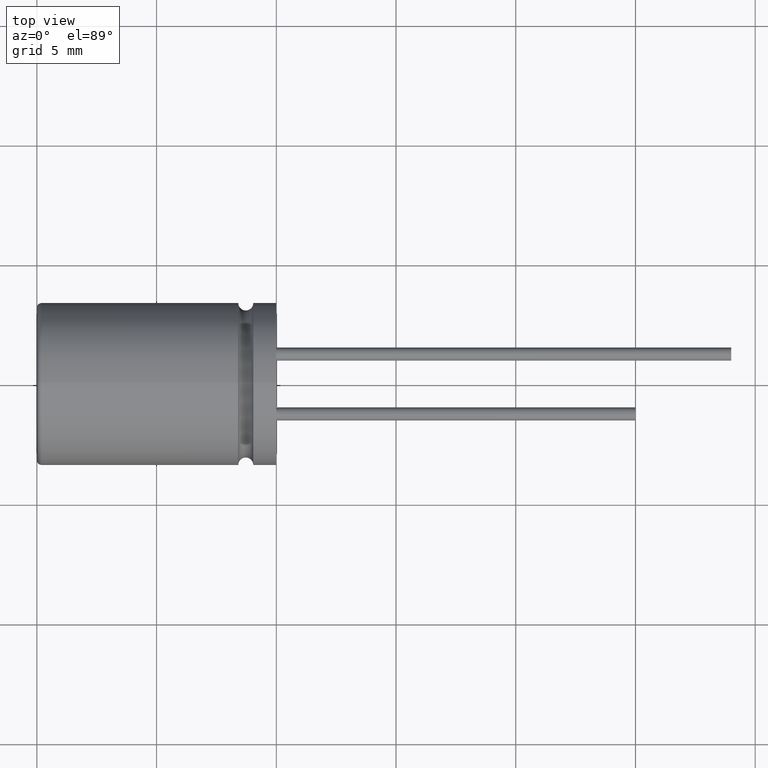
[diagram: clean part render]
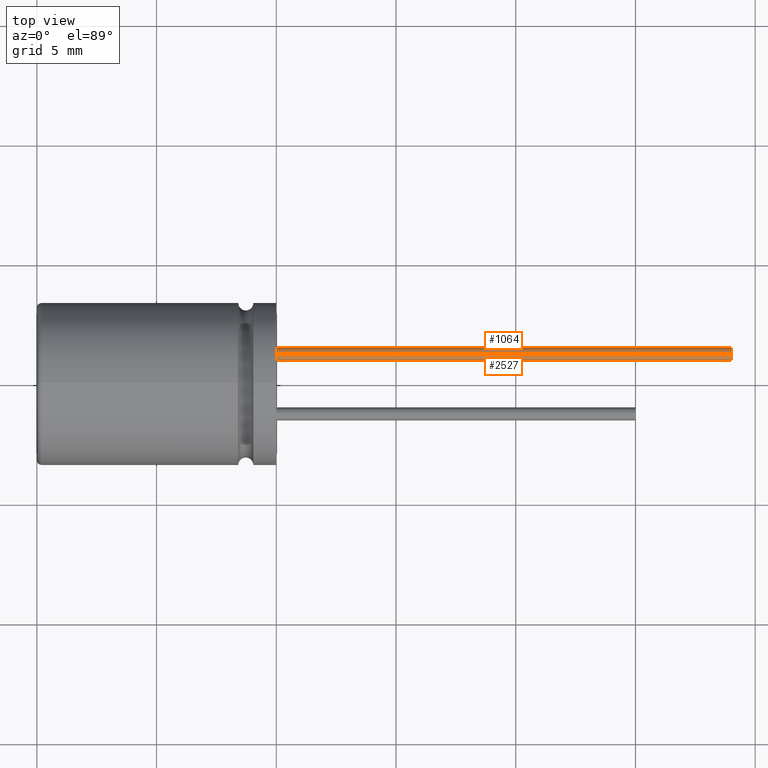
[diagram: same view with one multi-face feature highlighted, each face labeled with its STEP entity id]
A machine part, top view. The highlighted faces form ONE feature: a constant-radius fillet chain: 2 tangent blend faces with common blend radius 0.275 mm. The faces share edges in the B-rep.
Their STEP definitions:
[1] entity #2527 (Cylinder):
#86 = EDGE_CURVE ( 'NONE', #2086, #2450, #923, .T. ) ;
#188 = CYLINDRICAL_SURFACE ( 'NONE', #1113, 0.2750000000000000200 ) ;
#237 = CARTESIAN_POINT ( 'NONE',  ( 28.99999999999999600, 1.250000000000000000, 0.2750000000000000200 ) ) ;
#393 = DIRECTION ( 'NONE',  ( 0.0000000000000000000, 0.0000000000000000000, -1.000000000000000000 ) ) ;
#413 = CARTESIAN_POINT ( 'NONE',  ( 28.99999999999999600, 1.250000000000000000, -0.2750000000000000200 ) ) ;
#550 = EDGE_LOOP ( 'NONE', ( #2882, #705, #3069, #1448 ) ) ;
#603 = DIRECTION ( 'NONE',  ( 0.0000000000000000000, 0.0000000000000000000, 1.000000000000000000 ) ) ;
#673 = CARTESIAN_POINT ( 'NONE',  ( 28.99999999999999600, 1.250000000000000000, -0.2750000000000000200 ) ) ;
#682 = EDGE_CURVE ( 'NONE', #3040, #2086, #2609, .T. ) ;
#705 = ORIENTED_EDGE ( 'NONE', *, *, #2497, .F. ) ;
#745 = DIRECTION ( 'NONE',  ( -1.000000000000000000, -0.0000000000000000000, -0.0000000000000000000 ) ) ;
#833 = AXIS2_PLACEMENT_3D ( 'NONE', #933, #3312, #393 ) ;
#870 = CARTESIAN_POINT ( 'NONE',  ( 28.99999999999999600, 1.250000000000000000, 0.0000000000000000000 ) ) ;
#923 = CIRCLE ( 'NONE', #833, 0.2750000000000000200 ) ;
#928 = VERTEX_POINT ( 'NONE', #413 ) ;
#933 = CARTESIAN_POINT ( 'NONE',  ( 10.00000000000000000, 1.250000000000000000, 0.0000000000000000000 ) ) ;
#961 = CIRCLE ( 'NONE', #3152, 0.2750000000000000200 ) ;
#1113 = AXIS2_PLACEMENT_3D ( 'NONE', #870, #2981, #603 ) ;
#1368 = CARTESIAN_POINT ( 'NONE',  ( 10.00000000000000000, 1.250000000000000000, -0.2750000000000000200 ) ) ;
#1448 = ORIENTED_EDGE ( 'NONE', *, *, #86, .T. ) ;
#1485 = FACE_OUTER_BOUND ( 'NONE', #550, .T. ) ;
#1537 = CARTESIAN_POINT ( 'NONE',  ( 28.99999999999999600, 1.250000000000000000, 0.2750000000000000200 ) ) ;
#2086 = VERTEX_POINT ( 'NONE', #2234 ) ;
#2234 = CARTESIAN_POINT ( 'NONE',  ( 10.00000000000000000, 1.250000000000000000, 0.2750000000000000200 ) ) ;
#2450 = VERTEX_POINT ( 'NONE', #1368 ) ;
#2454 = DIRECTION ( 'NONE',  ( 0.0000000000000000000, 0.0000000000000000000, -1.000000000000000000 ) ) ;
#2495 = DIRECTION ( 'NONE',  ( -1.000000000000000000, -0.0000000000000000000, -0.0000000000000000000 ) ) ;
#2497 = EDGE_CURVE ( 'NONE', #3040, #928, #961, .T. ) ;
#2527 = ADVANCED_FACE ( 'NONE', ( #1485 ), #188, .T. ) ;
#2530 = VECTOR ( 'NONE', #2495, 1000.000000000000000 ) ;
#2609 = LINE ( 'NONE', #1537, #3079 ) ;
#2623 = EDGE_CURVE ( 'NONE', #928, #2450, #2699, .T. ) ;
#2699 = LINE ( 'NONE', #673, #2530 ) ;
#2882 = ORIENTED_EDGE ( 'NONE', *, *, #2623, .F. ) ;
#2964 = CARTESIAN_POINT ( 'NONE',  ( 28.99999999999999600, 1.250000000000000000, 0.0000000000000000000 ) ) ;
#2981 = DIRECTION ( 'NONE',  ( -1.000000000000000000, -0.0000000000000000000, -0.0000000000000000000 ) ) ;
#3040 = VERTEX_POINT ( 'NONE', #237 ) ;
#3069 = ORIENTED_EDGE ( 'NONE', *, *, #682, .T. ) ;
#3079 = VECTOR ( 'NONE', #745, 1000.000000000000000 ) ;
#3152 = AXIS2_PLACEMENT_3D ( 'NONE', #2964, #3232, #2454 ) ;
#3232 = DIRECTION ( 'NONE',  ( 1.000000000000000000, 0.0000000000000000000, 0.0000000000000000000 ) ) ;
#3312 = DIRECTION ( 'NONE',  ( 1.000000000000000000, 0.0000000000000000000, 0.0000000000000000000 ) ) ;
[2] entity #1064 (Cylinder):
#146 = ORIENTED_EDGE ( 'NONE', *, *, #1000, .F. ) ;
#178 = CIRCLE ( 'NONE', #3329, 0.2750000000000000200 ) ;
#237 = CARTESIAN_POINT ( 'NONE',  ( 28.99999999999999600, 1.250000000000000000, 0.2750000000000000200 ) ) ;
#413 = CARTESIAN_POINT ( 'NONE',  ( 28.99999999999999600, 1.250000000000000000, -0.2750000000000000200 ) ) ;
#487 = DIRECTION ( 'NONE',  ( 0.0000000000000000000, 0.0000000000000000000, -1.000000000000000000 ) ) ;
#589 = CIRCLE ( 'NONE', #639, 0.2750000000000000200 ) ;
#605 = EDGE_CURVE ( 'NONE', #2450, #2086, #589, .T. ) ;
#639 = AXIS2_PLACEMENT_3D ( 'NONE', #2057, #1250, #487 ) ;
#673 = CARTESIAN_POINT ( 'NONE',  ( 28.99999999999999600, 1.250000000000000000, -0.2750000000000000200 ) ) ;
#682 = EDGE_CURVE ( 'NONE', #3040, #2086, #2609, .T. ) ;
#714 = DIRECTION ( 'NONE',  ( -1.000000000000000000, -0.0000000000000000000, -0.0000000000000000000 ) ) ;
#722 = CARTESIAN_POINT ( 'NONE',  ( 28.99999999999999600, 1.250000000000000000, 0.0000000000000000000 ) ) ;
#745 = DIRECTION ( 'NONE',  ( -1.000000000000000000, -0.0000000000000000000, -0.0000000000000000000 ) ) ;
#776 = ORIENTED_EDGE ( 'NONE', *, *, #2623, .T. ) ;
#928 = VERTEX_POINT ( 'NONE', #413 ) ;
#998 = DIRECTION ( 'NONE',  ( 1.000000000000000000, 0.0000000000000000000, 0.0000000000000000000 ) ) ;
#1000 = EDGE_CURVE ( 'NONE', #928, #3040, #178, .T. ) ;
#1064 = ADVANCED_FACE ( 'NONE', ( #2156 ), #2327, .T. ) ;
#1250 = DIRECTION ( 'NONE',  ( 1.000000000000000000, 0.0000000000000000000, 0.0000000000000000000 ) ) ;
#1318 = AXIS2_PLACEMENT_3D ( 'NONE', #2544, #714, #1518 ) ;
#1368 = CARTESIAN_POINT ( 'NONE',  ( 10.00000000000000000, 1.250000000000000000, -0.2750000000000000200 ) ) ;
#1518 = DIRECTION ( 'NONE',  ( 0.0000000000000000000, 0.0000000000000000000, 1.000000000000000000 ) ) ;
#1537 = CARTESIAN_POINT ( 'NONE',  ( 28.99999999999999600, 1.250000000000000000, 0.2750000000000000200 ) ) ;
#2021 = EDGE_LOOP ( 'NONE', ( #146, #776, #2771, #2364 ) ) ;
#2057 = CARTESIAN_POINT ( 'NONE',  ( 10.00000000000000000, 1.250000000000000000, 0.0000000000000000000 ) ) ;
#2086 = VERTEX_POINT ( 'NONE', #2234 ) ;
#2156 = FACE_OUTER_BOUND ( 'NONE', #2021, .T. ) ;
#2234 = CARTESIAN_POINT ( 'NONE',  ( 10.00000000000000000, 1.250000000000000000, 0.2750000000000000200 ) ) ;
#2327 = CYLINDRICAL_SURFACE ( 'NONE', #1318, 0.2750000000000000200 ) ;
#2364 = ORIENTED_EDGE ( 'NONE', *, *, #682, .F. ) ;
#2450 = VERTEX_POINT ( 'NONE', #1368 ) ;
#2495 = DIRECTION ( 'NONE',  ( -1.000000000000000000, -0.0000000000000000000, -0.0000000000000000000 ) ) ;
#2530 = VECTOR ( 'NONE', #2495, 1000.000000000000000 ) ;
#2544 = CARTESIAN_POINT ( 'NONE',  ( 28.99999999999999600, 1.250000000000000000, 0.0000000000000000000 ) ) ;
#2567 = DIRECTION ( 'NONE',  ( 0.0000000000000000000, 0.0000000000000000000, -1.000000000000000000 ) ) ;
#2609 = LINE ( 'NONE', #1537, #3079 ) ;
#2623 = EDGE_CURVE ( 'NONE', #928, #2450, #2699, .T. ) ;
#2699 = LINE ( 'NONE', #673, #2530 ) ;
#2771 = ORIENTED_EDGE ( 'NONE', *, *, #605, .T. ) ;
#3040 = VERTEX_POINT ( 'NONE', #237 ) ;
#3079 = VECTOR ( 'NONE', #745, 1000.000000000000000 ) ;
#3329 = AXIS2_PLACEMENT_3D ( 'NONE', #722, #998, #2567 ) ;